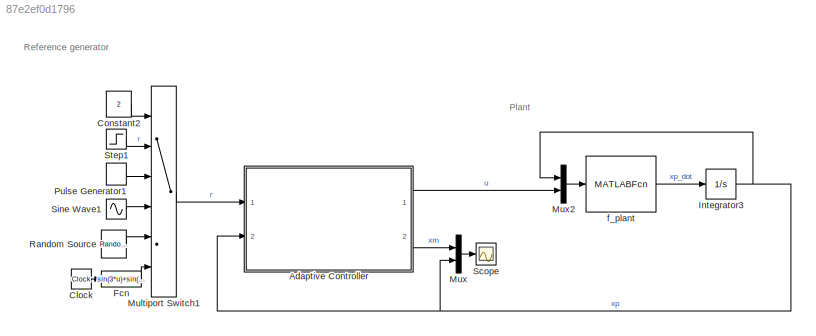
MODEL slx_87e2ef0d1796
KIND model
CONFIG AbsTol = auto
CONFIG EnableMultiTasking = off
CONFIG FixedStep = auto
CONFIG MaxStep = auto
CONFIG MinStep = auto
CONFIG RelTol = 1e-3
CONFIG SampleTimeConstraint = Unconstrained
CONFIG Solver = VariableStepAuto
CONFIG SolverName = VariableStepAuto
CONFIG StartTime = 0.0
CONFIG StopTime = 50
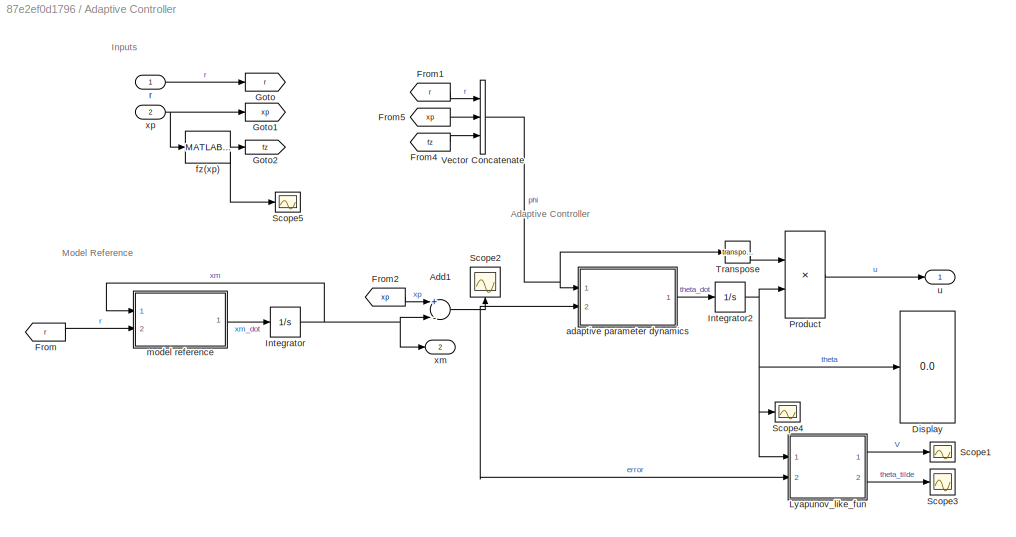
BLOCK [SubSystem] Adaptive Controller
  Ports = [2, 2]
  RequestExecContextInheritance = off
BLOCK [Sum] Adaptive Controller/Add1
  InputSameDT = off
  Inputs = +-
  OutDataTypeStr = Inherit: Inherit via internal rule
  Ports = [2, 1]
  SaturateOnIntegerOverflow = off
BLOCK [Display] Adaptive Controller/Display
  Decimation = 1
  Ports = [1]
BLOCK [From] Adaptive Controller/From
  GotoTag = r
BLOCK [From] Adaptive Controller/From1
  GotoTag = r
BLOCK [From] Adaptive Controller/From2
  GotoTag = xp
BLOCK [From] Adaptive Controller/From4
  GotoTag = fz
BLOCK [From] Adaptive Controller/From5
  GotoTag = xp
BLOCK [Goto] Adaptive Controller/Goto
  GotoTag = r
BLOCK [Goto] Adaptive Controller/Goto1
  GotoTag = xp
BLOCK [Goto] Adaptive Controller/Goto2
  GotoTag = fz
BLOCK [Integrator] Adaptive Controller/Integrator
  InitialCondition = xm_0
  Ports = [1, 1]
BLOCK [Integrator] Adaptive Controller/Integrator2
  InitialCondition = theta_0
  Ports = [1, 1]
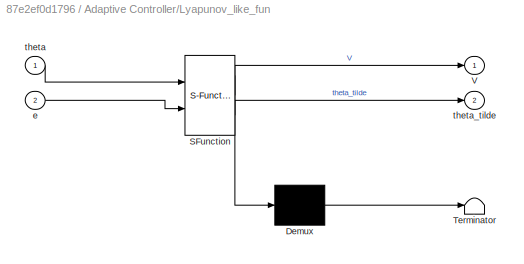
BLOCK [SubSystem] Adaptive Controller/Lyapunov_like_fun
  ErrorFcn = Stateflow.Translate.translate
  PermitHierarchicalResolution = ExplicitOnly
  Ports = [2, 2]
  RequestExecContextInheritance = off
  SFBlockType = MATLAB Function
  TreatAsAtomicUnit = on
BLOCK [Demux] Adaptive Controller/Lyapunov_like_fun/ Demux 
  Outputs = 1
  Ports = [1, 1]
BLOCK [S-Function] Adaptive Controller/Lyapunov_like_fun/ SFunction 
  EnableBusSupport = on
  FunctionName = sf_sfun
  Parameters = gamma,kp,theta_true
  PortCounts = [2 3]
  Ports = [2, 3]
  SFcnIsStateOwnerBlock = off
  SFunctionDeploymentMode = off
  Tag = Stateflow S-Function adaptive_control 4
BLOCK [Terminator] Adaptive Controller/Lyapunov_like_fun/ Terminator 
BLOCK [Outport] Adaptive Controller/Lyapunov_like_fun/V
  IconDisplay = Port number
BLOCK [Inport] Adaptive Controller/Lyapunov_like_fun/e
  IconDisplay = Port number
  Port = 2
BLOCK [Inport] Adaptive Controller/Lyapunov_like_fun/theta
  IconDisplay = Port number
BLOCK [Outport] Adaptive Controller/Lyapunov_like_fun/theta_tilde
  IconDisplay = Port number
  Port = 2
BLOCK [Product] Adaptive Controller/Product
  InputSameDT = off
  Multiplication = Matrix(*)
  OutDataTypeStr = Inherit: Inherit via internal rule
  Ports = [2, 1]
  RndMeth = Floor
  SaturateOnIntegerOverflow = off
BLOCK [Scope] Adaptive Controller/Scope1
  Floating = off
  NumInputPorts = 1
  Ports = [1]
  ScopeSpecificationString = Simulink.scopes.TimeScopeBlockCfg('CurrentConfiguration', extmgr.ConfigurationSet(extmgr.Configuration('Core','General UI',true),extmgr.Configuration('Core','Source UI',true),extmgr.Configuration('Sources','WiredSimulink',true,'DataLoggingVariableName','ScopeData5'),extmgr.Configuration('Visuals','Time Domain',true,'SerializedDisplays',{struct('MinYLimReal','-0.42706','MaxYLimReal','3.84375','YLab...<+1432ch>
BLOCK [Scope] Adaptive Controller/Scope2
  Floating = off
  NumInputPorts = 1
  Ports = [1]
  ScopeSpecificationString = Simulink.scopes.TimeScopeBlockCfg('CurrentConfiguration', extmgr.ConfigurationSet(extmgr.Configuration('Core','General UI',true),extmgr.Configuration('Core','Source UI',true),extmgr.Configuration('Sources','WiredSimulink',true,'DataLoggingVariableName','ScopeData6'),extmgr.Configuration('Visuals','Time Domain',true,'SerializedDisplays',{struct('MinYLimReal','-1.2168','MaxYLimReal','1.58396','YLabe...<+1438ch>
BLOCK [Scope] Adaptive Controller/Scope3
  Floating = off
  NumInputPorts = 1
  Ports = [1]
  ScopeSpecificationString = Simulink.scopes.TimeScopeBlockCfg('CurrentConfiguration', extmgr.ConfigurationSet(extmgr.Configuration('Core','General UI',true),extmgr.Configuration('Core','Source UI',true),extmgr.Configuration('Sources','WiredSimulink',true,'DataLoggingVariableName','ScopeData7'),extmgr.Configuration('Visuals','Time Domain',true,'SerializedDisplays',{struct('MinYLimReal','-2.26912','MaxYLimReal','1.74321','YLab...<+1663ch>
BLOCK [Scope] Adaptive Controller/Scope4
  Floating = off
  NumInputPorts = 1
  Ports = [1]
  ScopeSpecificationString = Simulink.scopes.TimeScopeBlockCfg('CurrentConfiguration', extmgr.ConfigurationSet(extmgr.Configuration('Core','General UI',true),extmgr.Configuration('Core','Source UI',true),extmgr.Configuration('Sources','WiredSimulink',true,'DataLoggingVariableName','ScopeData1'),extmgr.Configuration('Visuals','Time Domain',true,'SerializedDisplays',{struct('MinYLimReal','-1.93799','MaxYLimReal','2.49216','YLab...<+1626ch>
BLOCK [Scope] Adaptive Controller/Scope5
  Floating = off
  NumInputPorts = 1
  Ports = [1]
  ScopeSpecificationString = Simulink.scopes.TimeScopeBlockCfg('CurrentConfiguration', extmgr.ConfigurationSet(extmgr.Configuration('Core','General UI',true),extmgr.Configuration('Core','Source UI',true),extmgr.Configuration('Sources','WiredSimulink',true,'DataLoggingVariableName','ScopeData2'),extmgr.Configuration('Visuals','Time Domain',true,'SerializedDisplays',{struct('MinYLimReal','-11.40379','MaxYLimReal','17.45544','YL...<+1616ch>
BLOCK [Math] Adaptive Controller/Transpose
  Operator = transpose
  Ports = [1, 1]
BLOCK [Concatenate] Adaptive Controller/Vector Concatenate
  NumInputs = 3
  Ports = [3, 1]
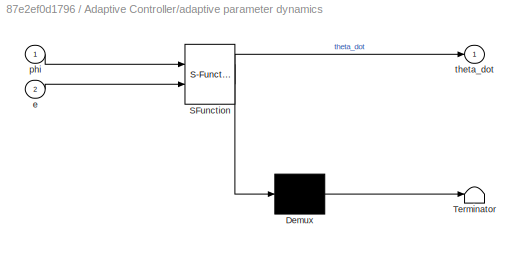
BLOCK [SubSystem] Adaptive Controller/adaptive parameter dynamics
  ErrorFcn = Stateflow.Translate.translate
  PermitHierarchicalResolution = ExplicitOnly
  Ports = [2, 1]
  RequestExecContextInheritance = off
  SFBlockType = MATLAB Function
  TreatAsAtomicUnit = on
BLOCK [Demux] Adaptive Controller/adaptive parameter dynamics/ Demux 
  Outputs = 1
  Ports = [1, 1]
BLOCK [S-Function] Adaptive Controller/adaptive parameter dynamics/ SFunction 
  EnableBusSupport = on
  FunctionName = sf_sfun
  Parameters = gamma,kp
  PortCounts = [2 2]
  Ports = [2, 2]
  SFcnIsStateOwnerBlock = off
  SFunctionDeploymentMode = off
  Tag = Stateflow S-Function adaptive_control 5
BLOCK [Terminator] Adaptive Controller/adaptive parameter dynamics/ Terminator 
BLOCK [Inport] Adaptive Controller/adaptive parameter dynamics/e
  IconDisplay = Port number
  Port = 2
BLOCK [Inport] Adaptive Controller/adaptive parameter dynamics/phi
  IconDisplay = Port number
BLOCK [Outport] Adaptive Controller/adaptive parameter dynamics/theta_dot
  IconDisplay = Port number
BLOCK [MATLABFcn] Adaptive Controller/fz(xp)
  MATLABFcn = fz(u)
  OutputDimensions = length(alphap)
  Ports = [1, 1]
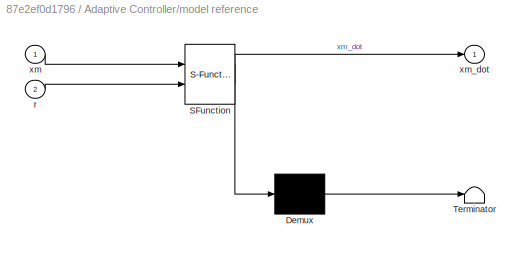
BLOCK [SubSystem] Adaptive Controller/model reference
  ErrorFcn = Stateflow.Translate.translate
  PermitHierarchicalResolution = ExplicitOnly
  Ports = [2, 1]
  RequestExecContextInheritance = off
  SFBlockType = MATLAB Function
  TreatAsAtomicUnit = on
BLOCK [Demux] Adaptive Controller/model reference/ Demux 
  Outputs = 1
  Ports = [1, 1]
BLOCK [S-Function] Adaptive Controller/model reference/ SFunction 
  EnableBusSupport = on
  FunctionName = sf_sfun
  Parameters = am,km
  PortCounts = [2 2]
  Ports = [2, 2]
  SFcnIsStateOwnerBlock = off
  SFunctionDeploymentMode = off
  Tag = Stateflow S-Function adaptive_control 6
BLOCK [Terminator] Adaptive Controller/model reference/ Terminator 
BLOCK [Inport] Adaptive Controller/model reference/r
  IconDisplay = Port number
  Port = 2
BLOCK [Inport] Adaptive Controller/model reference/xm
  IconDisplay = Port number
BLOCK [Outport] Adaptive Controller/model reference/xm_dot
  IconDisplay = Port number
BLOCK [Inport] Adaptive Controller/r
  IconDisplay = Port number
BLOCK [Outport] Adaptive Controller/u
  IconDisplay = Port number
BLOCK [Outport] Adaptive Controller/xm
  IconDisplay = Port number
  Port = 2
BLOCK [Inport] Adaptive Controller/xp
  IconDisplay = Port number
  Port = 2
BLOCK [Clock] Clock
  DisplayTime = on
BLOCK [Constant] Constant2
  Value = 2
BLOCK [Fcn] Fcn
  Expr = sin(3*u)+sin(3/2*u)+sin(3/4*u)
BLOCK [Integrator] Integrator3
  InitialCondition = xp_0
  Ports = [1, 1]
BLOCK [MultiPortSwitch] Multiport Switch1
  InputSameDT = off
  Inputs = 5
  Ports = [6, 1]
  SaturateOnIntegerOverflow = off
BLOCK [Mux] Mux
  DisplayOption = bar
  Inputs = 2
  Ports = [2, 1]
BLOCK [Mux] Mux2
  DisplayOption = bar
  Inputs = 2
  Ports = [2, 1]
BLOCK [DiscretePulseGenerator] Pulse Generator1
  Amplitude = 4
  Period = 3
  Ports = [0, 1]
  PulseType = Time based
  PulseWidth = 50
BLOCK [Reference] Random Source  REF=dspsrcs4/Random
Source
  Ports = [0, 1]
  SourceBlock = dspsrcs4/Random\nSource
  SourceProductBaseCode = DS
  SourceProductName = DSP System Toolbox
  SourceType = Random Source
  UserDataPersistent = on
BLOCK [Scope] Scope
  Floating = off
  NumInputPorts = 1
  Ports = [1]
  ScopeSpecificationString = Simulink.scopes.TimeScopeBlockCfg('CurrentConfiguration', extmgr.ConfigurationSet(extmgr.Configuration('Core','General UI',true),extmgr.Configuration('Core','Source UI',true),extmgr.Configuration('Sources','WiredSimulink',true),extmgr.Configuration('Visuals','Time Domain',true,'SerializedDisplays',{struct('MinYLimReal','-2.68622','MaxYLimReal','3.75741','YLabelReal','','MinYLimMag','0.00000','MaxY...<+1470ch>
BLOCK [Sin] Sine Wave1
  Amplitude = 4
  Frequency = 0.1
  Ports = [0, 1]
  SampleTime = 0
BLOCK [Step] Step1
  After = 4
  SampleTime = 0
BLOCK [MATLABFcn] f_plant
  MATLABFcn = f_plant(u(1),u(2))
  OutputDimensions = 1
  Ports = [1, 1]
ANNOTATION (root): Plant
ANNOTATION (root): Reference generator
ANNOTATION Adaptive Controller: Adaptive Controller
ANNOTATION Adaptive Controller: Inputs
ANNOTATION Adaptive Controller: Model Reference
NET Adaptive Controller/Add1:1 -> Adaptive Controller/Lyapunov_like_fun:2, Adaptive Controller/Scope2:1, Adaptive Controller/adaptive parameter dynamics:2
LINE Adaptive Controller/From1:1 -> Adaptive Controller/Vector Concatenate:1
LINE Adaptive Controller/From2:1 -> Adaptive Controller/Add1:1
LINE Adaptive Controller/From4:1 -> Adaptive Controller/Vector Concatenate:3
LINE Adaptive Controller/From5:1 -> Adaptive Controller/Vector Concatenate:2
LINE Adaptive Controller/From:1 -> Adaptive Controller/model reference:2
NET Adaptive Controller/Integrator2:1 -> Adaptive Controller/Display:1, Adaptive Controller/Lyapunov_like_fun:1, Adaptive Controller/Product:2, Adaptive Controller/Scope4:1
NET Adaptive Controller/Integrator:1 -> Adaptive Controller/Add1:2, Adaptive Controller/model reference:1, Adaptive Controller/xm:1
LINE Adaptive Controller/Lyapunov_like_fun:1 -> Adaptive Controller/Scope1:1
LINE Adaptive Controller/Lyapunov_like_fun:2 -> Adaptive Controller/Scope3:1
LINE Adaptive Controller/Product:1 -> Adaptive Controller/u:1
LINE Adaptive Controller/Transpose:1 -> Adaptive Controller/Product:1
NET Adaptive Controller/Vector Concatenate:1 -> Adaptive Controller/Transpose:1, Adaptive Controller/adaptive parameter dynamics:1
LINE Adaptive Controller/adaptive parameter dynamics:1 -> Adaptive Controller/Integrator2:1
NET Adaptive Controller/fz(xp):1 -> Adaptive Controller/Goto2:1, Adaptive Controller/Scope5:1
LINE Adaptive Controller/model reference:1 -> Adaptive Controller/Integrator:1
LINE Adaptive Controller/r:1 -> Adaptive Controller/Goto:1
NET Adaptive Controller/xp:1 -> Adaptive Controller/Goto1:1, Adaptive Controller/fz(xp):1
LINE Adaptive Controller:1 -> Mux2:2
LINE Adaptive Controller:2 -> Mux:1
LINE Clock:1 -> Fcn:1
LINE Constant2:1 -> Multiport Switch1:1
LINE Fcn:1 -> Multiport Switch1:6
NET Integrator3:1 -> Adaptive Controller:2, Mux2:1, Mux:2
LINE Multiport Switch1:1 -> Adaptive Controller:1
LINE Mux2:1 -> f_plant:1
LINE Mux:1 -> Scope:1
LINE Pulse Generator1:1 -> Multiport Switch1:3
LINE Random Source:1 -> Multiport Switch1:5
LINE Sine Wave1:1 -> Multiport Switch1:4
LINE Step1:1 -> Multiport Switch1:2
LINE f_plant:1 -> Integrator3:1
note: NET lines group one-source signal fan-out (src -> all destinations, sorted); 1:1 wires keep LINE
CHART Adaptive Controller/Lyapunov_like_fun states=1 transitions=1
  STATE_LABEL 'eML_blk_kernel()'
  STATE_LABEL "SCRIPT:\nfunction [V,theta_tilde] = Lyap_fun(theta, e, kp, gamma, theta_true)\n    \n    V = zeros(1);\n    theta_tilde = theta_true - theta;\n    V = 1/2 * e^2 + 1/2 * abs(kp) *(theta_tilde' / gamma * theta_tilde);\n"
CHART Adaptive Controller/adaptive parameter dynamics states=1 transitions=1
  STATE_LABEL 'eML_blk_kernel()'
  STATE_LABEL 'SCRIPT:\nfunction theta_dot = fcn(phi, e, kp, gamma)\n\n    theta_dot = - gamma * sign(kp) * phi * e;\n    \n%     theta_dot([3,6]) = 0;\n'
CHART Adaptive Controller/model reference states=1 transitions=1
  STATE_LABEL 'eML_blk_kernel()'
  STATE_LABEL 'SCRIPT:\nfunction xm_dot = fcn(xm, r, am, km)\n\n    xm_dot = am * xm + km * r;\n'
